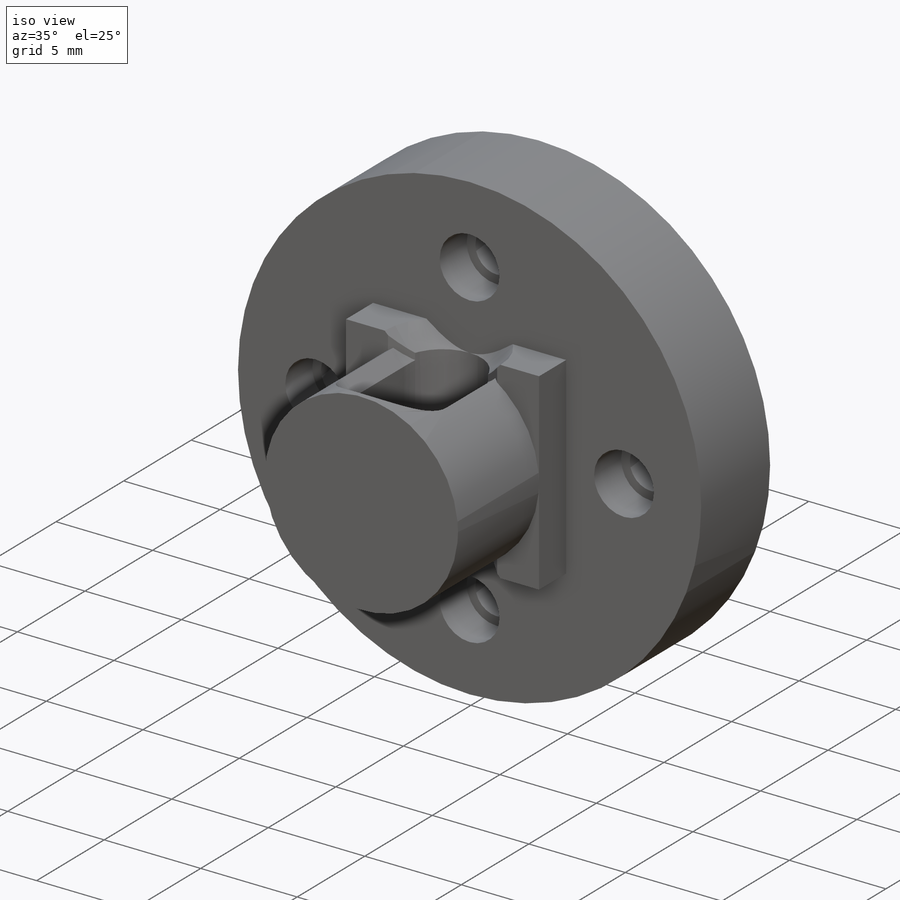
[diagram: iso view]
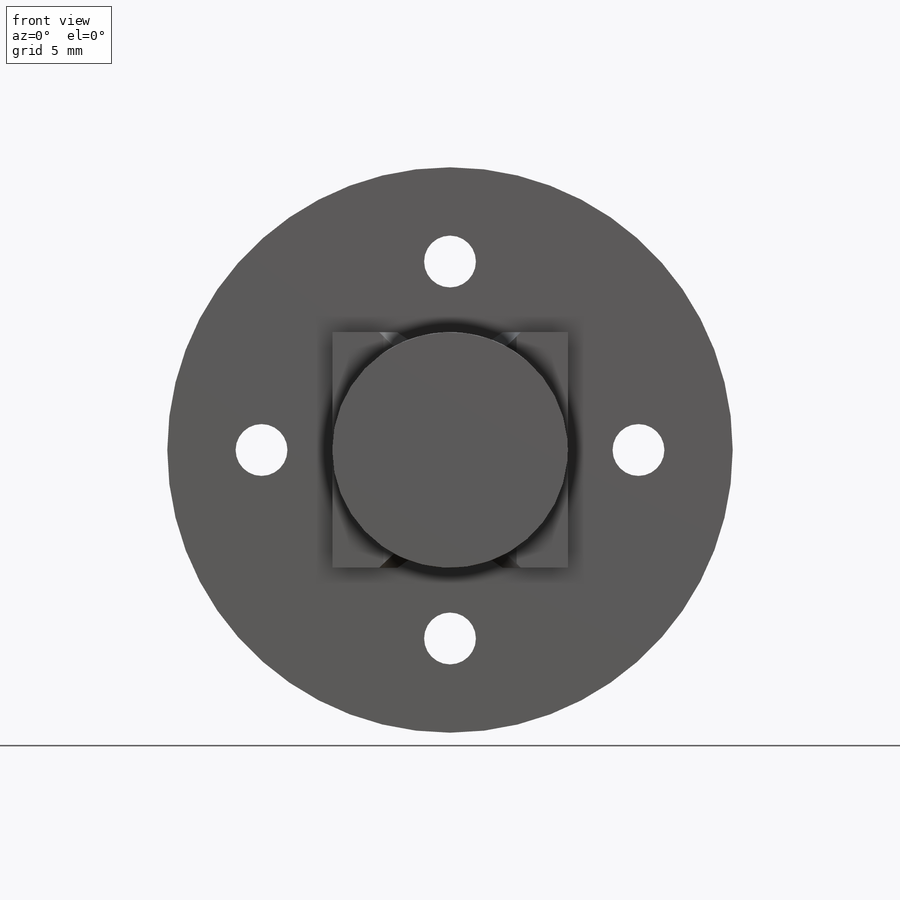
[diagram: front view]
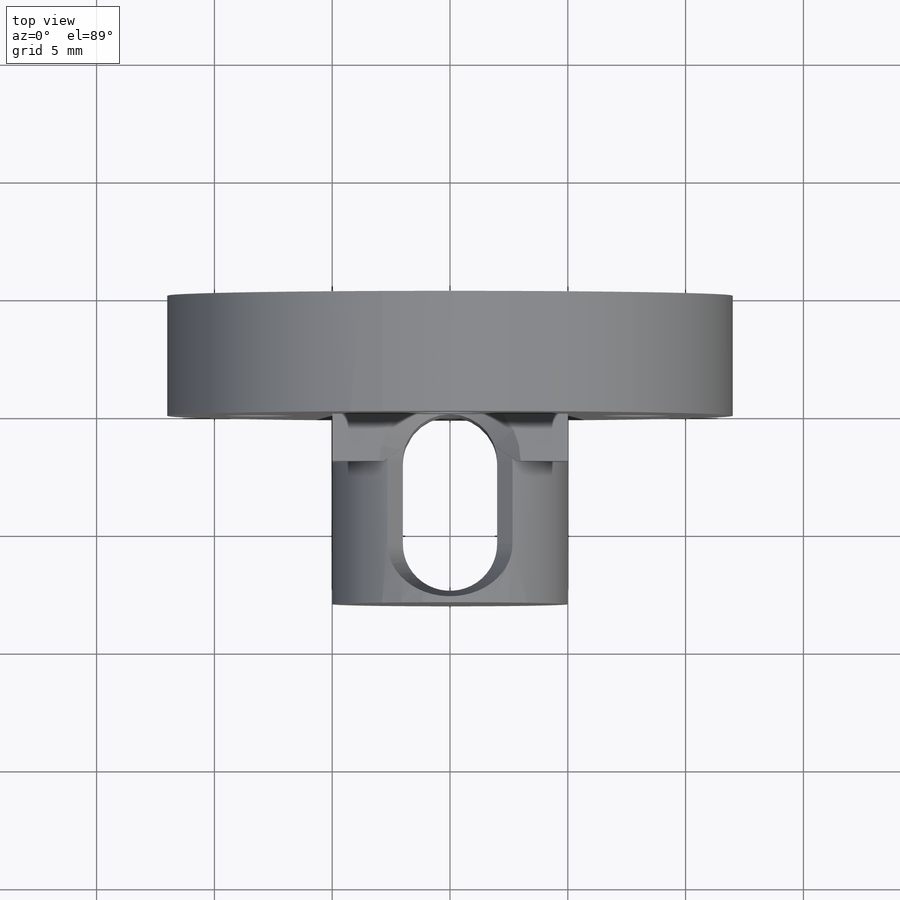
[diagram: top view]
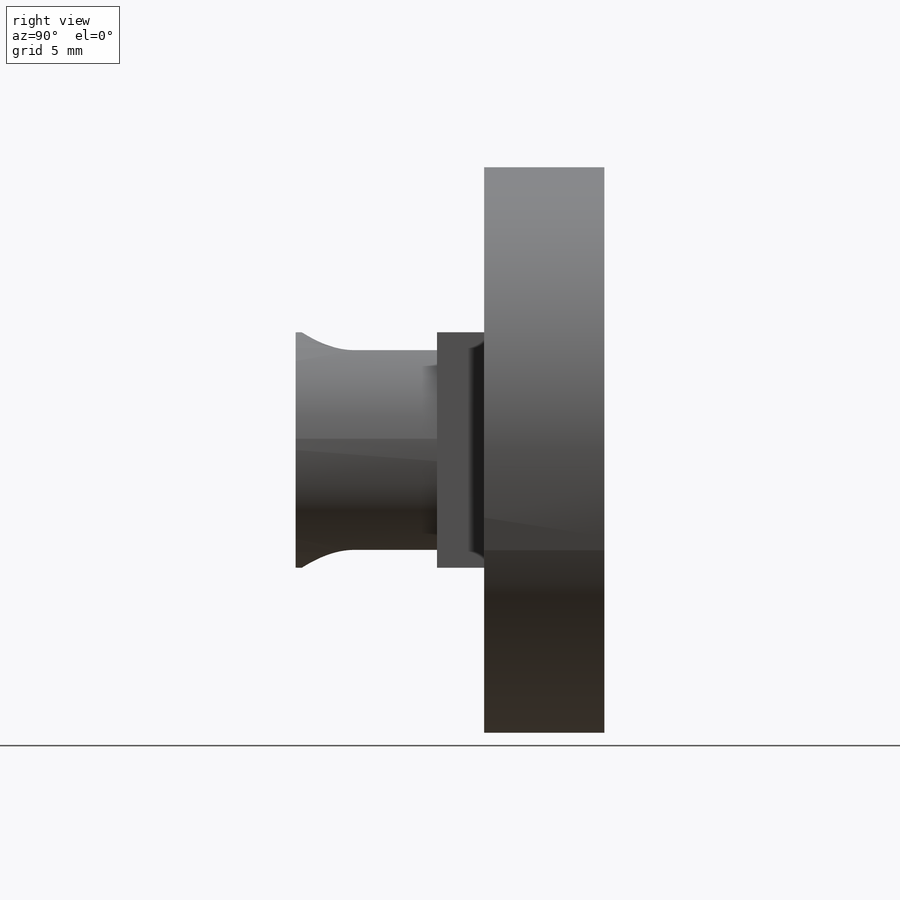
[diagram: right view]
SOLIDWORKS PART (.sldprt)
format: sldprt  version: not decoded by parser v0  size: 312,320 bytes
history: native  units: mm
features: sketch x7, extrude x4, cut_extrude x3, material x1, chamfer x1 (+13 scaffold rows collapsed)
feature tree (29):
  scaffold x13  (default folders/planes/origin — collapsed)
  material  "Material <not specified>"
  sketch  "Sketch1"  dims[D2=2.2mm D3=24.0mm D4=12.5mm D6=~5.708107mm D5=8.0mm]
  extrude  "Boss-Extrude1"  Depth=3.1mm
  sketch  "Sketch2"  dims[D1=24.0mm]
  extrude  "Boss-Extrude2"  Depth=2mm
  sketch  "Sketch3"  dims[D2=2.2mm D1=8.0mm D3=4.0]
  cut_extrude  "Cut-Extrude1"  Depth=13mm
  sketch  "Sketch4"  dims[D1=10.0mm]
  extrude  "Boss-Extrude4"  Depth=8mm
  sketch  "Sketch6"
  extrude  "Boss-Extrude5"  Depth=2mm
  sketch  "Sketch7"  dims[c1.D3=2.0mm c1.D1=2.0mm c1.D2=2.5mm c2.D3=3.5mm]
  cut_extrude  "Cut-Extrude2"  [1 undecoded]
  sketch  "Sketch8"  dims[D1=3.1mm D2=4.0]
  cut_extrude  "Cut-Extrude3"  Depth=2mm
  chamfer  "Chamfer1"  Distance=1mm Angle=45deg
decode coverage: 13 of 15 modeling features carry decoded parameters
note: ~ marks probable driven/reference dimensions
note: 1 parameter value undecoded
note: suppression state not decoded; provenance and decode notes live in map.json
